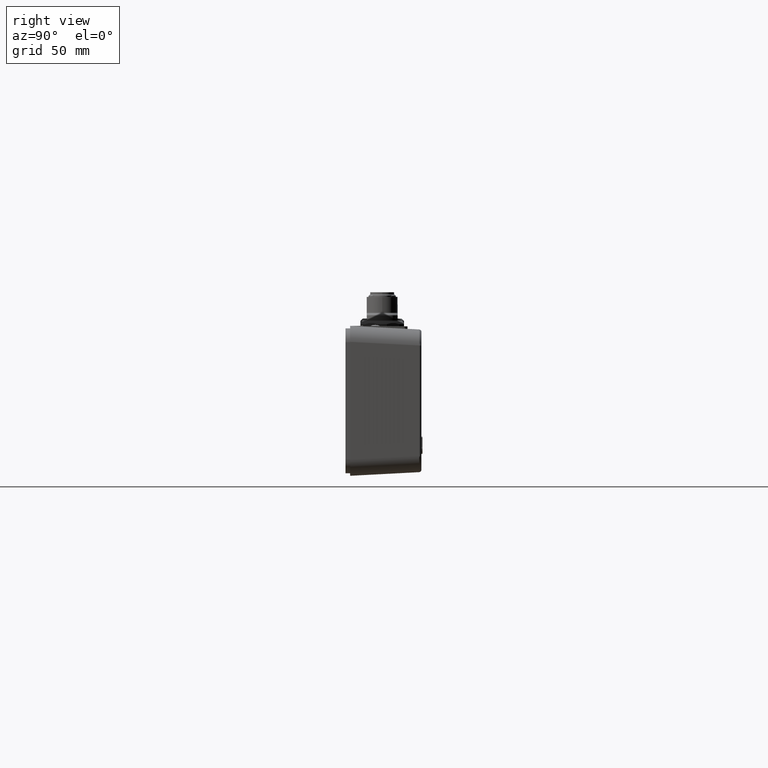
[diagram: clean part render]
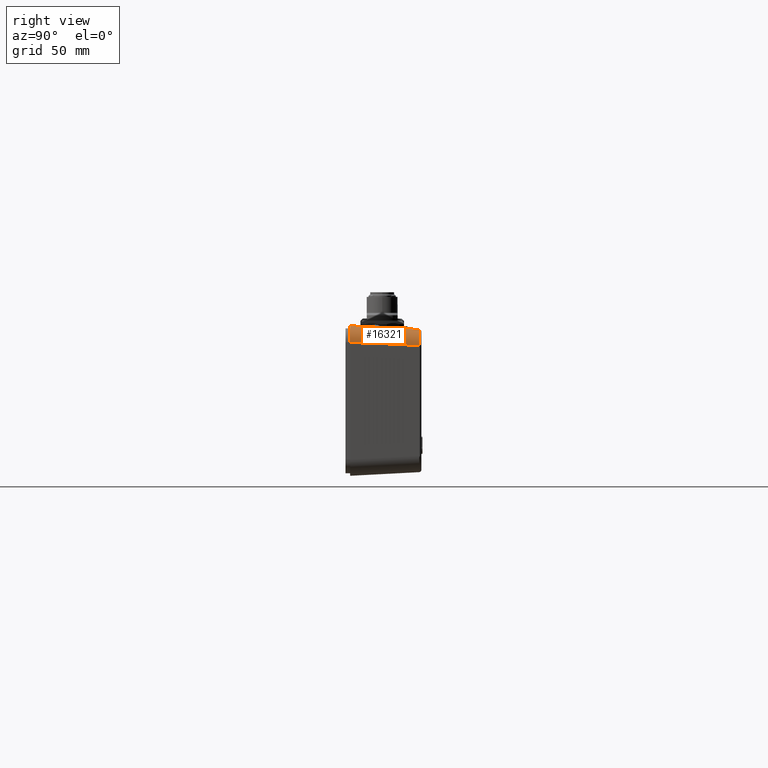
[diagram: same view with one face highlighted and labeled with its STEP entity id]
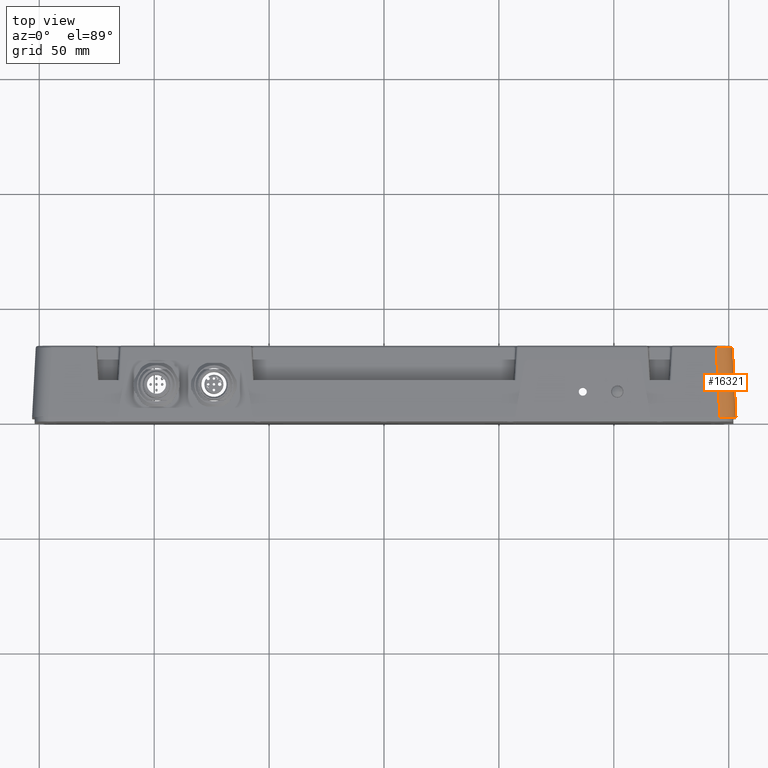
[diagram: same view with one face highlighted and labeled with its STEP entity id]
A machine part, right view. The second image highlights one B-rep face of the part: STEP entity #16321.
A second angle (top view) of the same face is appended — the face is thin or edge-on in the first view.
In plain terms, the highlighted cylindrical surface (edge-blend (fillet) strip) has radius 7 mm, axis along (0.0523, -0.9973, 0.0523).
Its self-contained STEP definition (entity closure, byte-faithful):
#1755 = FACE_OUTER_BOUND ( 'NONE', #21582, .T. ) ;
#2442 = VERTEX_POINT ( 'NONE', #3865 ) ;
#2827 =( BOUNDED_CURVE ( )  B_SPLINE_CURVE ( 3, ( #10618, #31370, #7847, #26374 ),
 .UNSPECIFIED., .F., .T. ) 
 B_SPLINE_CURVE_WITH_KNOTS ( ( 4, 4 ),
 ( 5.499156671652531969, 7.067213942706648488 ),
 .UNSPECIFIED. ) 
 CURVE ( )  GEOMETRIC_REPRESENTATION_ITEM ( )  RATIONAL_B_SPLINE_CURVE ( ( 1.000000000000000000, 0.8053830134673571894, 0.8053830134673571894, 1.000000000000000000 ) ) 
 REPRESENTATION_ITEM ( '' )  );
#3865 = CARTESIAN_POINT ( 'NONE',  ( 151.5496649680396786, 32.05233757624294100, 24.05925822475768072 ) ) ;
#4109 =( BOUNDED_CURVE ( )  B_SPLINE_CURVE ( 3, ( #11569, #29762, #8632, #19595 ),
 .UNSPECIFIED., .F., .T. ) 
 B_SPLINE_CURVE_WITH_KNOTS ( ( 4, 4 ),
 ( 5.499156671652533745, 7.067213942706638719 ),
 .UNSPECIFIED. ) 
 CURVE ( )  GEOMETRIC_REPRESENTATION_ITEM ( )  RATIONAL_B_SPLINE_CURVE ( ( 1.000000000000000000, 0.8053830134673598540, 0.8053830134673598540, 1.000000000000000000 ) ) 
 REPRESENTATION_ITEM ( '' )  );
#4758 = DIRECTION ( 'NONE',  ( 0.000000000000000000, -0.05233595624294354320, -0.9986295347545739443 ) ) ;
#5286 = ORIENTED_EDGE ( 'NONE', *, *, #16488, .F. ) ;
#7847 = CARTESIAN_POINT ( 'NONE',  ( 150.2314393616968289, 2.000001619999999924, 32.62464115777432028 ) ) ;
#8213 = CARTESIAN_POINT ( 'NONE',  ( 143.7010222131797264, 48.42845622349209123, 30.19142895646176328 ) ) ;
#8632 = CARTESIAN_POINT ( 'NONE',  ( 148.6548643428532444, 32.08284505301261191, 31.04806613893066825 ) ) ;
#8938 = ORIENTED_EDGE ( 'NONE', *, *, #21271, .F. ) ;
#10164 = CARTESIAN_POINT ( 'NONE',  ( 146.1342344144921981, 2.000001619999999924, 32.62464115777427764 ) ) ;
#10618 = CARTESIAN_POINT ( 'NONE',  ( 153.1246411577742776, 2.000001619999999924, 25.63423441449225848 ) ) ;
#11569 = CARTESIAN_POINT ( 'NONE',  ( 151.5496649680396786, 32.05233757624294100, 24.05925822475768072 ) ) ;
#14490 = VERTEX_POINT ( 'NONE', #31405 ) ;
#16321 = ADVANCED_FACE ( 'NONE', ( #1755 ), #22620, .T. ) ;
#16347 = ORIENTED_EDGE ( 'NONE', *, *, #27372, .T. ) ;
#16488 = EDGE_CURVE ( 'NONE', #21610, #14490, #31723, .T. ) ;
#17387 = AXIS2_PLACEMENT_3D ( 'NONE', #28280, #23128, #4758 ) ;
#18673 = DIRECTION ( 'NONE',  ( -0.05226442768871403938, 0.9972646886342372285, -0.05226442768871402550 ) ) ;
#19595 = CARTESIAN_POINT ( 'NONE',  ( 144.5592582247576843, 32.05233757624293389, 31.04966496803969633 ) ) ;
#21271 = EDGE_CURVE ( 'NONE', #2442, #25607, #23397, .T. ) ;
#21582 = EDGE_LOOP ( 'NONE', ( #8938, #16347, #5286, #30330 ) ) ;
#21610 = VERTEX_POINT ( 'NONE', #10164 ) ;
#22232 = CARTESIAN_POINT ( 'NONE',  ( 153.1246411577742776, 2.000001619999999924, 25.63423441449225848 ) ) ;
#22620 = CYLINDRICAL_SURFACE ( 'NONE', #17387, 6.999999999999999112 ) ;
#23128 = DIRECTION ( 'NONE',  ( 0.05226442768871403938, -0.9972646886342373396, 0.05226442768871403938 ) ) ;
#23397 = LINE ( 'NONE', #28204, #31322 ) ;
#25607 = VERTEX_POINT ( 'NONE', #22232 ) ;
#26374 = CARTESIAN_POINT ( 'NONE',  ( 146.1342344144921981, 2.000001619999999924, 32.62464115777427764 ) ) ;
#26945 = EDGE_CURVE ( 'NONE', #25607, #21610, #2827, .T. ) ;
#27372 = EDGE_CURVE ( 'NONE', #2442, #14490, #4109, .T. ) ;
#28204 = CARTESIAN_POINT ( 'NONE',  ( 151.5190947881552859, 32.63565135718558707, 24.02868804487328092 ) ) ;
#28280 = CARTESIAN_POINT ( 'NONE',  ( 144.5286880448732632, 32.26929966348498624, 24.02868804487327736 ) ) ;
#29762 = CARTESIAN_POINT ( 'NONE',  ( 151.5480661389306647, 32.08284505301261191, 28.15486434285324435 ) ) ;
#30049 = VECTOR ( 'NONE', #18673, 1000.000000000000227 ) ;
#30330 = ORIENTED_EDGE ( 'NONE', *, *, #26945, .F. ) ;
#30959 = DIRECTION ( 'NONE',  ( 0.05226442768871402550, -0.9972646886342372285, 0.05226442768871403938 ) ) ;
#31322 = VECTOR ( 'NONE', #30959, 1000.000000000000227 ) ;
#31370 = CARTESIAN_POINT ( 'NONE',  ( 153.1246411577742776, 2.000001619999999924, 29.73143936169689283 ) ) ;
#31405 = CARTESIAN_POINT ( 'NONE',  ( 144.5592582247576843, 32.05233757624293389, 31.04966496803969633 ) ) ;
#31723 = LINE ( 'NONE', #8213, #30049 ) ;